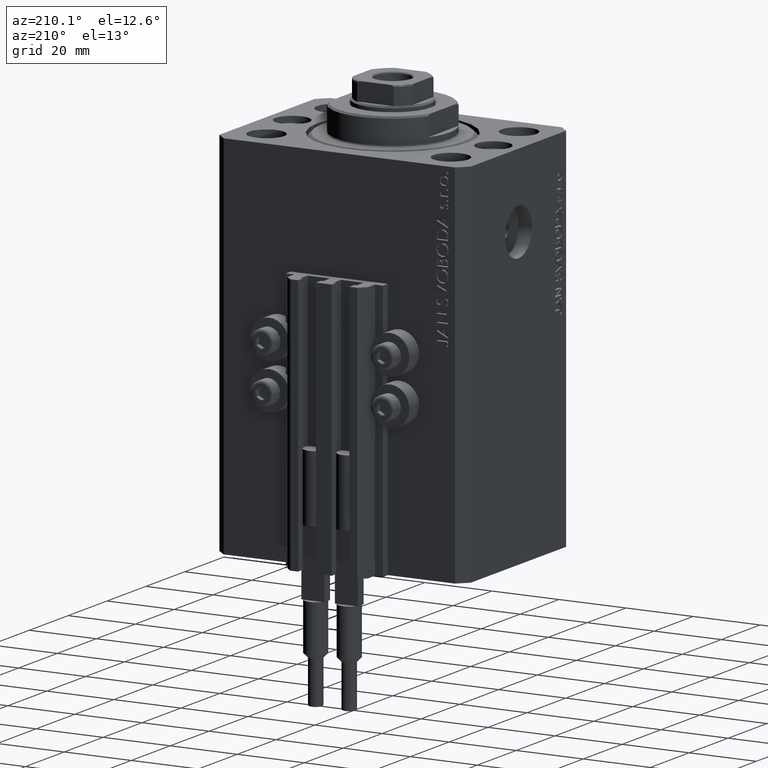
[diagram: clean part render]
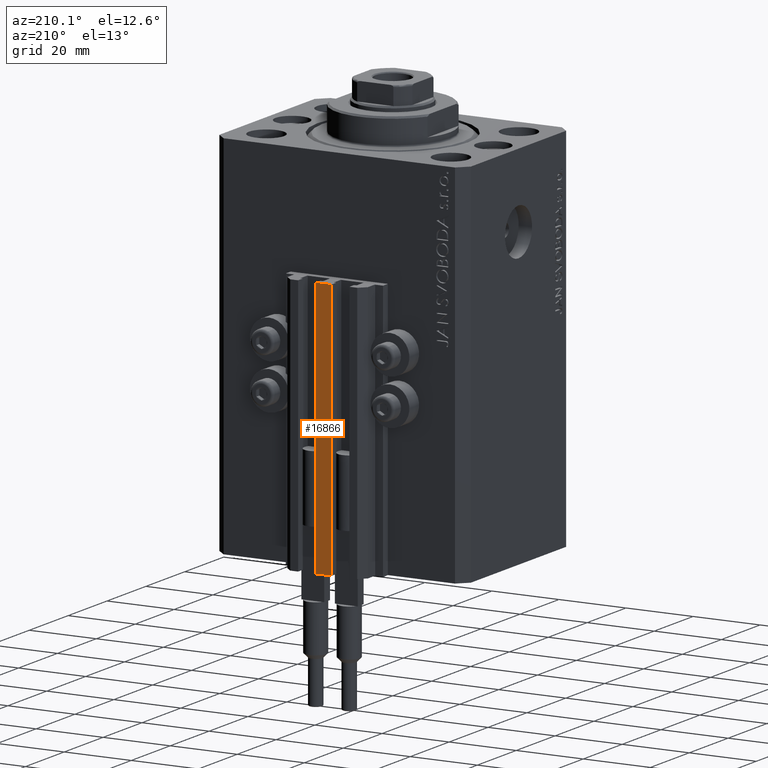
[diagram: same view with one face highlighted and labeled with its STEP entity id]
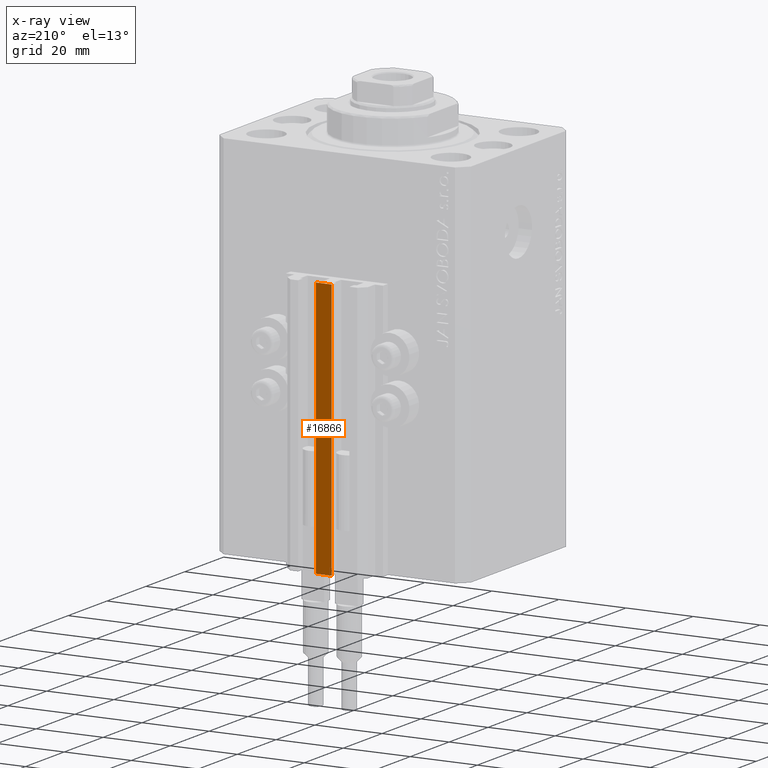
[diagram: x-ray of the same camera — body ghosted, the highlighted face saturated]
A machine part, auxiliary view. The second image highlights one B-rep face of the part: STEP entity #16866.
The next image is the same camera in x-ray: the body ghosted, the highlighted face saturated — about 0% of this face is hidden behind the body in this view.
In plain terms, the highlighted planar face has unit normal (0, -1, 0).
Its self-contained STEP definition (entity closure, byte-faithful):
#998 = FACE_OUTER_BOUND ( 'NONE', #41007, .T. ) ;
#1826 = AXIS2_PLACEMENT_3D ( 'NONE', #44716, #33535, #8267 ) ;
#2326 = VECTOR ( 'NONE', #31390, 1000.000000000000000 ) ;
#4748 = EDGE_CURVE ( 'NONE', #24546, #41521, #42305, .T. ) ;
#5174 = CARTESIAN_POINT ( 'NONE',  ( -2.350000000000003642, 35.50000000000001421, -33.00000000000000000 ) ) ;
#6936 = EDGE_CURVE ( 'NONE', #24546, #46378, #13429, .T. ) ;
#8267 = DIRECTION ( 'NONE',  ( 0.000000000000000000, -0.000000000000000000, -1.000000000000000000 ) ) ;
#8523 = CARTESIAN_POINT ( 'NONE',  ( -2.350000000000003642, 35.50000000000001421, -110.0000000000000000 ) ) ;
#8787 = CARTESIAN_POINT ( 'NONE',  ( -2.350000000000003642, 35.50000000000001421, -110.0000000000000000 ) ) ;
#11727 = ORIENTED_EDGE ( 'NONE', *, *, #40305, .F. ) ;
#13429 = LINE ( 'NONE', #35509, #19369 ) ;
#15302 = PLANE ( 'NONE',  #1826 ) ;
#16529 = DIRECTION ( 'NONE',  ( 0.000000000000000000, 0.000000000000000000, 1.000000000000000000 ) ) ;
#16866 = ADVANCED_FACE ( 'NONE', ( #998 ), #15302, .F. ) ;
#17054 = DIRECTION ( 'NONE',  ( 1.000000000000000000, 0.000000000000000000, 0.000000000000000000 ) ) ;
#17626 = VERTEX_POINT ( 'NONE', #40187 ) ;
#19313 = VECTOR ( 'NONE', #29275, 1000.000000000000000 ) ;
#19369 = VECTOR ( 'NONE', #17054, 1000.000000000000000 ) ;
#21600 = VECTOR ( 'NONE', #16529, 1000.000000000000000 ) ;
#21986 = LINE ( 'NONE', #47759, #19313 ) ;
#24095 = CARTESIAN_POINT ( 'NONE',  ( -2.350000000000003642, 35.50000000000001421, -33.00000000000000000 ) ) ;
#24546 = VERTEX_POINT ( 'NONE', #8787 ) ;
#29275 = DIRECTION ( 'NONE',  ( 0.000000000000000000, 0.000000000000000000, 1.000000000000000000 ) ) ;
#31390 = DIRECTION ( 'NONE',  ( 1.000000000000000000, 0.000000000000000000, 0.000000000000000000 ) ) ;
#31431 = ORIENTED_EDGE ( 'NONE', *, *, #41966, .T. ) ;
#33535 = DIRECTION ( 'NONE',  ( 0.000000000000000000, -1.000000000000000000, 0.000000000000000000 ) ) ;
#35509 = CARTESIAN_POINT ( 'NONE',  ( -2.350000000000003642, 35.50000000000001421, -110.0000000000000000 ) ) ;
#38450 = LINE ( 'NONE', #5174, #2326 ) ;
#40187 = CARTESIAN_POINT ( 'NONE',  ( 2.349999999999999645, 35.50000000000001421, -33.00000000000000000 ) ) ;
#40305 = EDGE_CURVE ( 'NONE', #46378, #17626, #21986, .T. ) ;
#41007 = EDGE_LOOP ( 'NONE', ( #31431, #11727, #45134, #47322 ) ) ;
#41521 = VERTEX_POINT ( 'NONE', #24095 ) ;
#41966 = EDGE_CURVE ( 'NONE', #41521, #17626, #38450, .T. ) ;
#42305 = LINE ( 'NONE', #8523, #21600 ) ;
#43405 = CARTESIAN_POINT ( 'NONE',  ( 2.349999999999999645, 35.50000000000001421, -110.0000000000000000 ) ) ;
#44716 = CARTESIAN_POINT ( 'NONE',  ( -2.350000000000003642, 35.50000000000001421, -110.0000000000000000 ) ) ;
#45134 = ORIENTED_EDGE ( 'NONE', *, *, #6936, .F. ) ;
#46378 = VERTEX_POINT ( 'NONE', #43405 ) ;
#47322 = ORIENTED_EDGE ( 'NONE', *, *, #4748, .T. ) ;
#47759 = CARTESIAN_POINT ( 'NONE',  ( 2.349999999999999645, 35.50000000000001421, -110.0000000000000000 ) ) ;